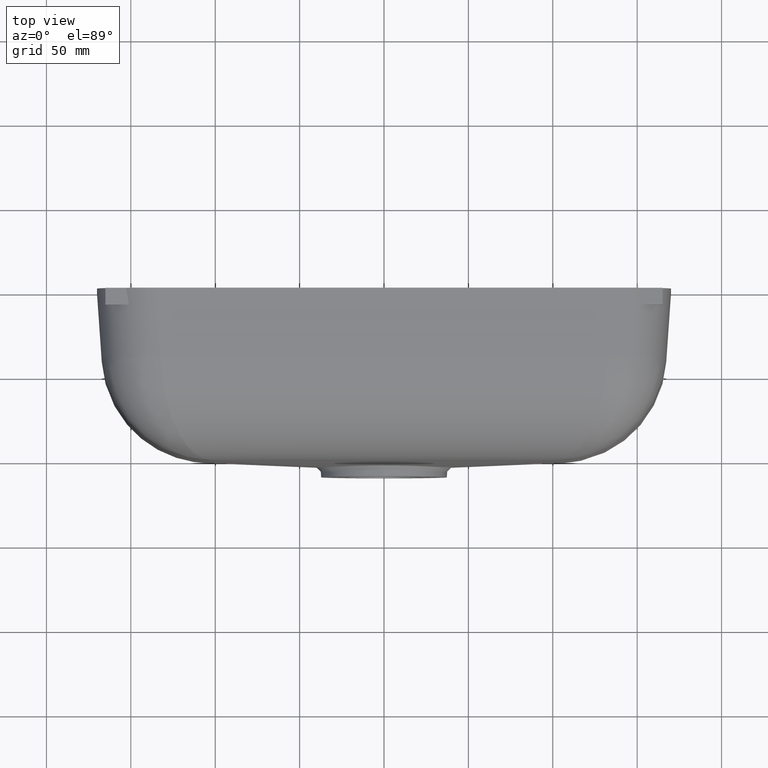
[diagram: clean part render]
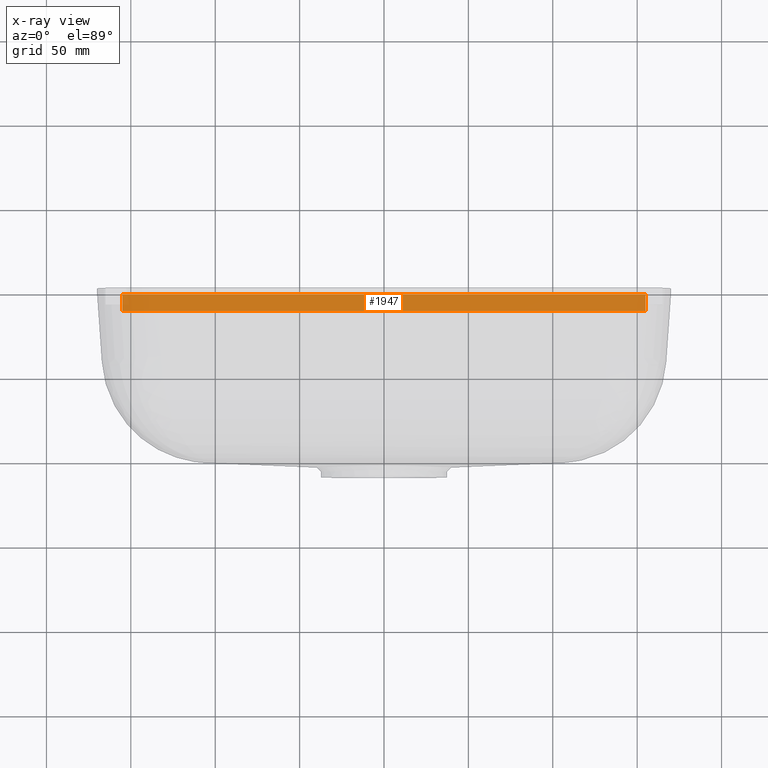
[diagram: x-ray — body ghosted, one internal face saturated and labeled with its STEP entity id]
A machine part, top view, then the same camera in x-ray: the body is ghosted and one INTERNAL B-rep face — a face not visible from any outside direction — is saturated and labeled: STEP entity #1947.
In plain terms, the highlighted planar face has unit normal (0, 0, -1).
Its self-contained STEP definition (entity closure, byte-faithful):
#491 = CARTESIAN_POINT ( 'NONE',  ( 155.0000000000000300, 0.0000000000000000000, -107.4999999999999900 ) ) ;
#700 = CARTESIAN_POINT ( 'NONE',  ( 155.0000000000000300, -10.00000000000000000, -107.4999999999999900 ) ) ;
#730 = DIRECTION ( 'NONE',  ( -1.000000000000000000, 0.0000000000000000000, -0.0000000000000000000 ) ) ;
#877 = CARTESIAN_POINT ( 'NONE',  ( -155.0000000000000300, 0.0000000000000000000, -107.4999999999999900 ) ) ;
#1095 = CARTESIAN_POINT ( 'NONE',  ( -155.0000000000000300, -10.00000000000000000, -107.4999999999999900 ) ) ;
#1507 = FACE_OUTER_BOUND ( 'NONE', #4800, .T. ) ;
#1642 = AXIS2_PLACEMENT_3D ( 'NONE', #1883, #3109, #730 ) ;
#1767 = DIRECTION ( 'NONE',  ( -1.000000000000000000, -0.0000000000000000000, -0.0000000000000000000 ) ) ;
#1883 = CARTESIAN_POINT ( 'NONE',  ( -155.0000000000000300, -10.00000000000000000, -107.4999999999999900 ) ) ;
#1947 = ADVANCED_FACE ( 'NONE', ( #1507 ), #6953, .F. ) ;
#2171 = VECTOR ( 'NONE', #4430, 1000.000000000000000 ) ;
#2811 = CARTESIAN_POINT ( 'NONE',  ( -155.0000000000000300, -10.00000000000000000, -107.4999999999999900 ) ) ;
#3099 = LINE ( 'NONE', #877, #4248 ) ;
#3109 = DIRECTION ( 'NONE',  ( 0.0000000000000000000, 0.0000000000000000000, -1.000000000000000000 ) ) ;
#3471 = LINE ( 'NONE', #7132, #4063 ) ;
#3633 = ORIENTED_EDGE ( 'NONE', *, *, #5422, .T. ) ;
#4039 = ORIENTED_EDGE ( 'NONE', *, *, #5434, .T. ) ;
#4063 = VECTOR ( 'NONE', #7010, 1000.000000000000000 ) ;
#4209 = VERTEX_POINT ( 'NONE', #491 ) ;
#4248 = VECTOR ( 'NONE', #1767, 1000.000000000000000 ) ;
#4330 = DIRECTION ( 'NONE',  ( 0.0000000000000000000, 1.000000000000000000, 0.0000000000000000000 ) ) ;
#4430 = DIRECTION ( 'NONE',  ( -1.000000000000000000, -0.0000000000000000000, -0.0000000000000000000 ) ) ;
#4684 = VERTEX_POINT ( 'NONE', #700 ) ;
#4800 = EDGE_LOOP ( 'NONE', ( #3633, #5245, #6573, #4039 ) ) ;
#5025 = VECTOR ( 'NONE', #4330, 1000.000000000000000 ) ;
#5245 = ORIENTED_EDGE ( 'NONE', *, *, #5976, .F. ) ;
#5276 = LINE ( 'NONE', #5798, #2171 ) ;
#5422 = EDGE_CURVE ( 'NONE', #4209, #6580, #3099, .T. ) ;
#5434 = EDGE_CURVE ( 'NONE', #4684, #4209, #3471, .T. ) ;
#5677 = VERTEX_POINT ( 'NONE', #2811 ) ;
#5798 = CARTESIAN_POINT ( 'NONE',  ( -155.0000000000000300, -10.00000000000000000, -107.4999999999999900 ) ) ;
#5958 = LINE ( 'NONE', #1095, #5025 ) ;
#5976 = EDGE_CURVE ( 'NONE', #5677, #6580, #5958, .T. ) ;
#6396 = CARTESIAN_POINT ( 'NONE',  ( -155.0000000000000300, 0.0000000000000000000, -107.4999999999999900 ) ) ;
#6573 = ORIENTED_EDGE ( 'NONE', *, *, #7059, .F. ) ;
#6580 = VERTEX_POINT ( 'NONE', #6396 ) ;
#6953 = PLANE ( 'NONE',  #1642 ) ;
#7010 = DIRECTION ( 'NONE',  ( 0.0000000000000000000, 1.000000000000000000, 0.0000000000000000000 ) ) ;
#7059 = EDGE_CURVE ( 'NONE', #4684, #5677, #5276, .T. ) ;
#7132 = CARTESIAN_POINT ( 'NONE',  ( 155.0000000000000300, -10.00000000000000000, -107.4999999999999900 ) ) ;